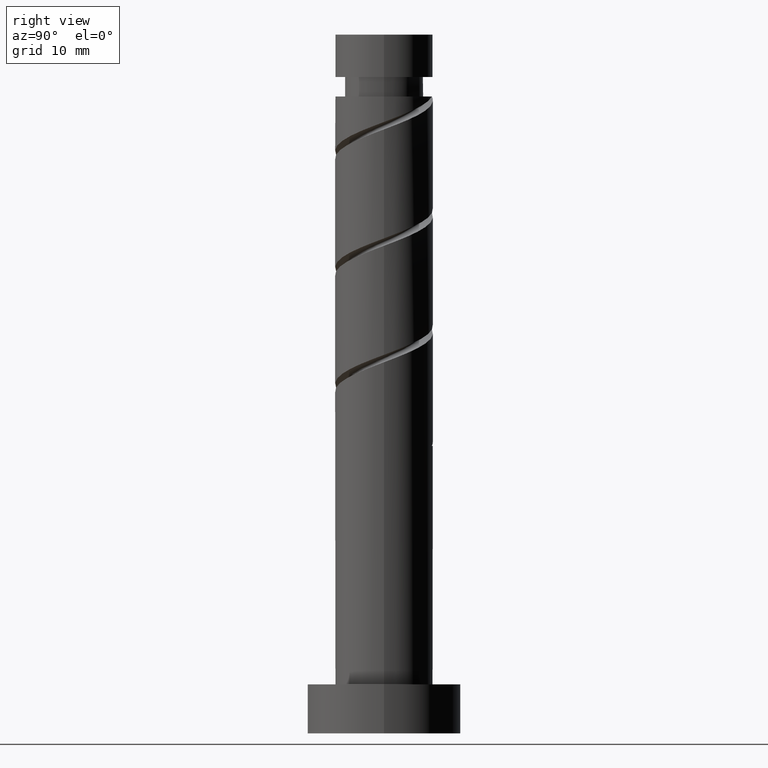
[diagram: clean part render]
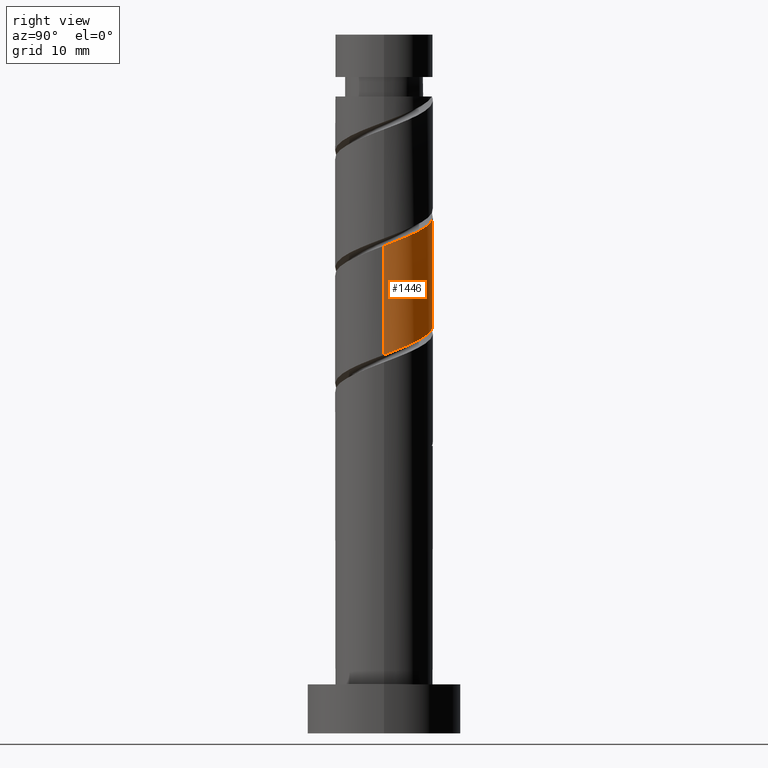
[diagram: same view with one face highlighted and labeled with its STEP entity id]
A machine part, right view. The second image highlights one B-rep face of the part: STEP entity #1446.
In plain terms, the highlighted cylindrical surface (partial cylindrical patch) has radius 7 mm, axis along (-0, -0, -1).
Its self-contained STEP definition (entity closure, byte-faithful):
#79 = CARTESIAN_POINT ( 'NONE',  ( 6.637425475935879504, 2.223641844227014275, 55.03863798749051739 ) ) ;
#89 = CARTESIAN_POINT ( 'NONE',  ( 7.000000000000011546, 0.09031172032414463979, 69.81957825087857827 ) ) ;
#91 = EDGE_CURVE ( 'NONE', #724, #934, #210, .T. ) ;
#95 = CARTESIAN_POINT ( 'NONE',  ( -6.999999999999997335, -3.465840238879363017E-15, 62.51393732025706385 ) ) ;
#98 = CARTESIAN_POINT ( 'NONE',  ( 7.000000000000009770, -5.303333124147260653E-15, 69.78556087694620658 ) ) ;
#111 = CARTESIAN_POINT ( 'NONE',  ( -6.637425475935891939, 2.223641844227019160, 77.26086020971274593 ) ) ;
#137 = DIRECTION ( 'NONE',  ( -1.000000000000000000, 0.000000000000000000, 0.000000000000000000 ) ) ;
#142 = VECTOR ( 'NONE', #555, 1000.000000000000000 ) ;
#210 = LINE ( 'NONE', #1010, #142 ) ;
#211 = CARTESIAN_POINT ( 'NONE',  ( 7.000000000000000000, 1.141380602743192529, 54.61052349928935712 ) ) ;
#217 = CARTESIAN_POINT ( 'NONE',  ( 3.655233476607374854, 5.969863334406302791, 56.89048983934237214 ) ) ;
#229 = CARTESIAN_POINT ( 'NONE',  ( 4.426928028896107925, 5.561094966743206136, 72.16826761712019334 ) ) ;
#319 = CARTESIAN_POINT ( 'NONE',  ( 3.342436566413459431, 6.150456714708457007, 72.63123058008311261 ) ) ;
#322 =( BOUNDED_CURVE ( )  B_SPLINE_CURVE ( 2, ( #98, #89, #340, #812, #674, #1023, #680, #229, #319, #558, #930, #903, #438, #348, #1138, #1355, #568, #694, #111, #428, #444 ),
 .UNSPECIFIED., .F., .T. ) 
 B_SPLINE_CURVE_WITH_KNOTS ( ( 3, 2, 2, 2, 2, 2, 2, 2, 2, 2, 3 ),
 ( 0.4295248053855290626, 0.4305555555555555802, 0.4444444444444444198, 0.4583333333333333703, 0.4722222222222222099, 0.4861111111111111605, 0.5000000000000000000, 0.5138888888888888395, 0.5277777777777777901, 0.5416666666666667407, 0.5545248053855290626 ),
 .UNSPECIFIED. ) 
 CURVE ( )  GEOMETRIC_REPRESENTATION_ITEM ( )  RATIONAL_B_SPLINE_CURVE ( ( 0.9071930855141264738, 0.9080659294509740853, 0.9090909090909141677, 0.8952797754656484086, 0.9090909090909141677, 0.8952797754656484086, 0.9090909090909141677, 0.8952797754656484086, 0.9090909090909141677, 0.8952797754656484086, 0.9090909090909141677, 0.8952797754656484086, 0.9090909090909141677, 0.8952797754656484086, 0.9090909090909141677, 0.8952797754656484086, 0.9090909090909141677, 0.8952797754656484086, 0.9090909090909141677, 0.8963047551055886020, 0.9071930855141262517 ) ) 
 REPRESENTATION_ITEM ( '' )  );
#325 = CARTESIAN_POINT ( 'NONE',  ( -6.999999999999997335, 0.09031172032414595818, 62.47991994632469215 ) ) ;
#340 = CARTESIAN_POINT ( 'NONE',  ( 6.997670043020834285, 0.1805933803021416428, 69.85345280230534115 ) ) ;
#348 = CARTESIAN_POINT ( 'NONE',  ( -2.602585499609341824, 6.614379617121002752, 74.94604539489795059 ) ) ;
#374 = CARTESIAN_POINT ( 'NONE',  ( 0.000000000000000000, 0.000000000000000000, 100.0000000000000000 ) ) ;
#428 = CARTESIAN_POINT ( 'NONE',  ( -7.000000000000010658, 1.141380602743200967, 77.68897469791393462 ) ) ;
#437 = ORIENTED_EDGE ( 'NONE', *, *, #91, .T. ) ;
#438 = CARTESIAN_POINT ( 'NONE',  ( -1.392982411949267085, 6.860000000000009202, 74.48308243193496025 ) ) ;
#444 = CARTESIAN_POINT ( 'NONE',  ( -7.000000000000008882, -3.704863703629635938E-15, 78.11889421027954938 ) ) ;
#500 = DIRECTION ( 'NONE',  ( -0.000000000000000000, -0.000000000000000000, -1.000000000000000000 ) ) ;
#555 = DIRECTION ( 'NONE',  ( -0.000000000000000000, -0.000000000000000000, -1.000000000000000000 ) ) ;
#556 = CARTESIAN_POINT ( 'NONE',  ( -6.965826557536210828, 1.414471410982078625, 61.98308243193498868 ) ) ;
#558 = CARTESIAN_POINT ( 'NONE',  ( 2.257945103930814490, 6.739818462673713206, 73.09419354304610295 ) ) ;
#568 = CARTESIAN_POINT ( 'NONE',  ( -5.476609438485875003, 4.359673044883936477, 76.33493428378682211 ) ) ;
#571 = CARTESIAN_POINT ( 'NONE',  ( -6.061958099077132900, 3.711621344802776168, 61.05715650600905775 ) ) ;
#583 = VERTEX_POINT ( 'NONE', #1407 ) ;
#601 = ORIENTED_EDGE ( 'NONE', *, *, #750, .F. ) ;
#625 = LINE ( 'NONE', #1388, #1044 ) ;
#646 =( BOUNDED_CURVE ( )  B_SPLINE_CURVE ( 2, ( #95, #325, #1345, #556, #1020, #571, #1460, #1127, #797, #916, #1252, #1473, #1360, #921, #217, #1244, #810, #1352, #79, #211, #685 ),
 .UNSPECIFIED., .F., .T. ) 
 B_SPLINE_CURVE_WITH_KNOTS ( ( 3, 2, 2, 2, 2, 2, 2, 2, 2, 2, 3 ),
 ( 0.6795248053855290626, 0.6805555555555555802, 0.6944444444444444198, 0.7083333333333333703, 0.7222222222222222099, 0.7361111111111111605, 0.7500000000000000000, 0.7638888888888888395, 0.7777777777777777901, 0.7916666666666666297, 0.8045248053855290626 ),
 .UNSPECIFIED. ) 
 CURVE ( )  GEOMETRIC_REPRESENTATION_ITEM ( )  RATIONAL_B_SPLINE_CURVE ( ( 0.9071930855141197014, 0.9080659294509674240, 0.9090909090909075063, 0.8952797754656419693, 0.9090909090909075063, 0.8952797754656419693, 0.9090909090909075063, 0.8952797754656419693, 0.9090909090909075063, 0.8952797754656419693, 0.9090909090909075063, 0.8952797754656419693, 0.9090909090909075063, 0.8952797754656419693, 0.9090909090909075063, 0.8952797754656419693, 0.9090909090909075063, 0.8952797754656419693, 0.9090909090909075063, 0.8963047551055820517, 0.9071930855141197014 ) ) 
 REPRESENTATION_ITEM ( '' )  );
#674 = CARTESIAN_POINT ( 'NONE',  ( 6.513892328306682522, 2.563046377892426619, 70.77937872823126497 ) ) ;
#680 = CARTESIAN_POINT ( 'NONE',  ( 5.244443063986622633, 4.636358155772992262, 71.70530465415721721 ) ) ;
#685 = CARTESIAN_POINT ( 'NONE',  ( 7.000000000000000000, 9.411548924543097934E-16, 54.18060398692372814 ) ) ;
#694 = CARTESIAN_POINT ( 'NONE',  ( -6.245337423366342122, 3.393999038076242591, 76.79789724674979823 ) ) ;
#724 = VERTEX_POINT ( 'NONE', #912 ) ;
#730 = FACE_OUTER_BOUND ( 'NONE', #1393, .T. ) ;
#750 = EDGE_CURVE ( 'NONE', #724, #942, #322, .T. ) ;
#759 = AXIS2_PLACEMENT_3D ( 'NONE', #374, #1071, #137 ) ;
#797 = CARTESIAN_POINT ( 'NONE',  ( -3.342436566413450993, 6.150456714708447237, 59.66826761712015070 ) ) ;
#810 = CARTESIAN_POINT ( 'NONE',  ( 5.476609438485867898, 4.359673044883925819, 55.96456391341644832 ) ) ;
#812 = CARTESIAN_POINT ( 'NONE',  ( 6.965826557536224151, 1.414471410982078625, 70.31641576526830306 ) ) ;
#903 = CARTESIAN_POINT ( 'NONE',  ( -0.1833793242891969266, 7.105620382879022756, 74.02011946897202677 ) ) ;
#912 = CARTESIAN_POINT ( 'NONE',  ( 7.000000000000009770, -5.303333124147260653E-15, 69.78556087694620658 ) ) ;
#916 = CARTESIAN_POINT ( 'NONE',  ( -2.257945103930805608, 6.739818462673701660, 59.20530465415720300 ) ) ;
#921 = CARTESIAN_POINT ( 'NONE',  ( 2.602585499609338271, 6.614379617120990318, 57.35345280230534115 ) ) ;
#930 = CARTESIAN_POINT ( 'NONE',  ( 1.037282889820812182, 6.922719422776363096, 73.55715650600902222 ) ) ;
#934 = VERTEX_POINT ( 'NONE', #947 ) ;
#942 = VERTEX_POINT ( 'NONE', #1292 ) ;
#947 = CARTESIAN_POINT ( 'NONE',  ( 7.000000000000000000, 9.411548924543097934E-16, 54.18060398692372814 ) ) ;
#954 = EDGE_CURVE ( 'NONE', #942, #583, #625, .T. ) ;
#1010 = CARTESIAN_POINT ( 'NONE',  ( 7.000000000000000888, 8.572527594031472204E-16, 100.0000000000000000 ) ) ;
#1020 = CARTESIAN_POINT ( 'NONE',  ( -6.513892328306670088, 2.563046377892426619, 61.52011946897199124 ) ) ;
#1023 = CARTESIAN_POINT ( 'NONE',  ( 6.061958099077146223, 3.711621344802777056, 71.24234169119422688 ) ) ;
#1044 = VECTOR ( 'NONE', #500, 1000.000000000000000 ) ;
#1071 = DIRECTION ( 'NONE',  ( -0.000000000000000000, -0.000000000000000000, -1.000000000000000000 ) ) ;
#1127 = CARTESIAN_POINT ( 'NONE',  ( -4.426928028896096379, 5.561094966743197254, 60.13123058008312682 ) ) ;
#1138 = CARTESIAN_POINT ( 'NONE',  ( -3.655233476607374854, 5.969863334406317001, 75.40900835786091250 ) ) ;
#1165 = ORIENTED_EDGE ( 'NONE', *, *, #1376, .F. ) ;
#1168 = CYLINDRICAL_SURFACE ( 'NONE', #759, 7.000000000000000888 ) ;
#1244 = CARTESIAN_POINT ( 'NONE',  ( 4.707881453605407884, 5.325347051691620592, 56.42752687637941023 ) ) ;
#1252 = CARTESIAN_POINT ( 'NONE',  ( -1.037282889820803744, 6.922719422776354214, 58.74234169119422688 ) ) ;
#1292 = CARTESIAN_POINT ( 'NONE',  ( -7.000000000000008882, -3.704863703629635938E-15, 78.11889421027953517 ) ) ;
#1330 = ORIENTED_EDGE ( 'NONE', *, *, #954, .F. ) ;
#1345 = CARTESIAN_POINT ( 'NONE',  ( -6.997670043020820962, 0.1805933803021424477, 62.44604539489792217 ) ) ;
#1352 = CARTESIAN_POINT ( 'NONE',  ( 6.245337423366329688, 3.393999038076235042, 55.50160095045349351 ) ) ;
#1355 = CARTESIAN_POINT ( 'NONE',  ( -4.707881453605412325, 5.325347051691633915, 75.87197132082387441 ) ) ;
#1360 = CARTESIAN_POINT ( 'NONE',  ( 1.392982411949269306, 6.859999999999997655, 57.81641576526829596 ) ) ;
#1376 = EDGE_CURVE ( 'NONE', #583, #934, #646, .T. ) ;
#1388 = CARTESIAN_POINT ( 'NONE',  ( -7.000000000000000888, 0.000000000000000000, 100.0000000000000000 ) ) ;
#1393 = EDGE_LOOP ( 'NONE', ( #601, #437, #1165, #1330 ) ) ;
#1407 = CARTESIAN_POINT ( 'NONE',  ( -6.999999999999997335, -3.465840238879362623E-15, 62.51393732025706385 ) ) ;
#1446 = ADVANCED_FACE ( 'NONE', ( #730 ), #1168, .T. ) ;
#1460 = CARTESIAN_POINT ( 'NONE',  ( -5.244443063986612863, 4.636358155772986933, 60.59419354304608163 ) ) ;
#1473 = CARTESIAN_POINT ( 'NONE',  ( 0.1833793242891981479, 7.105620382879009433, 58.27937872823127208 ) ) ;